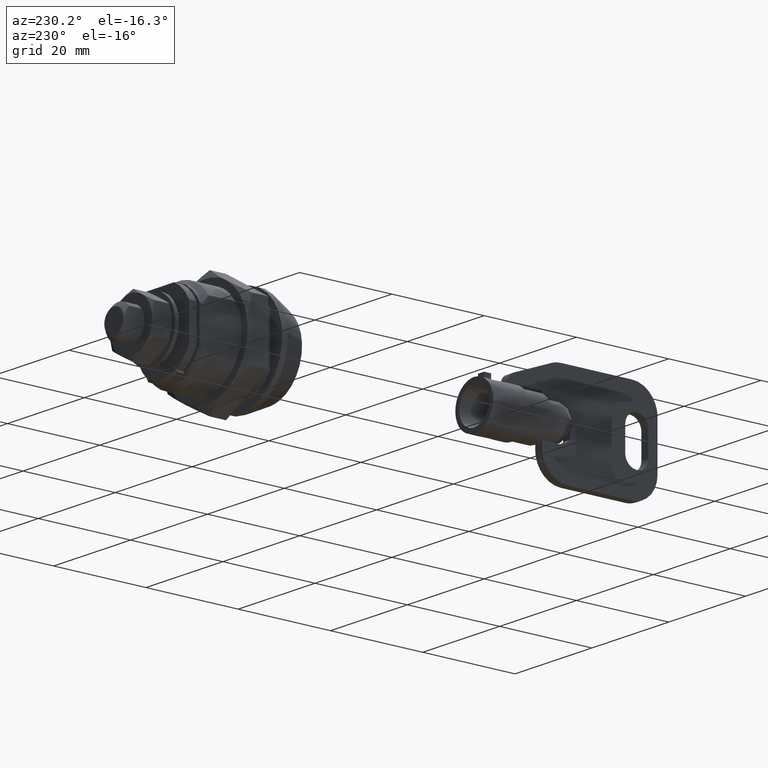
[diagram: clean part render]
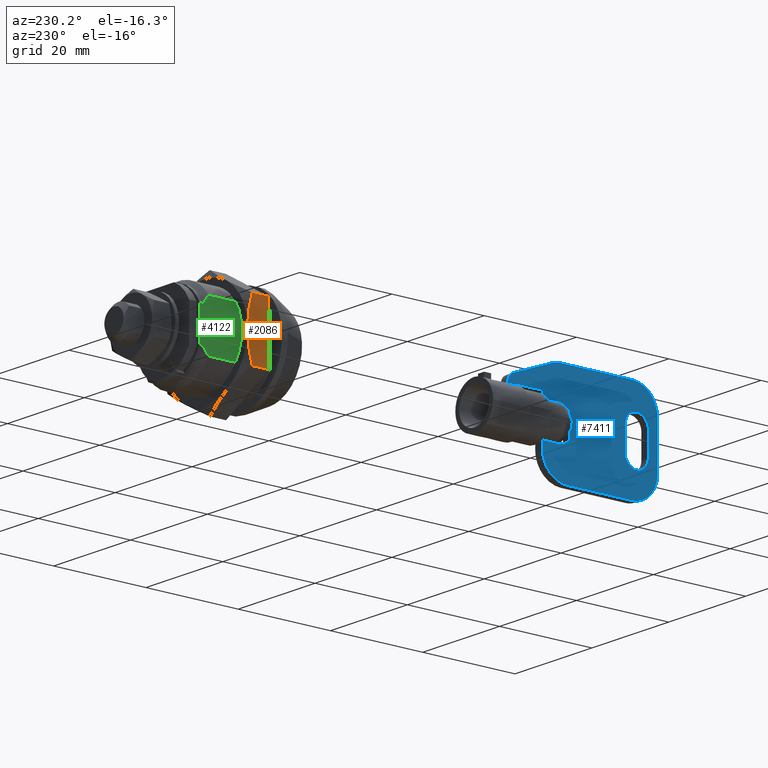
[diagram: same view with three faces highlighted in distinct colors, each labeled with its STEP entity id]
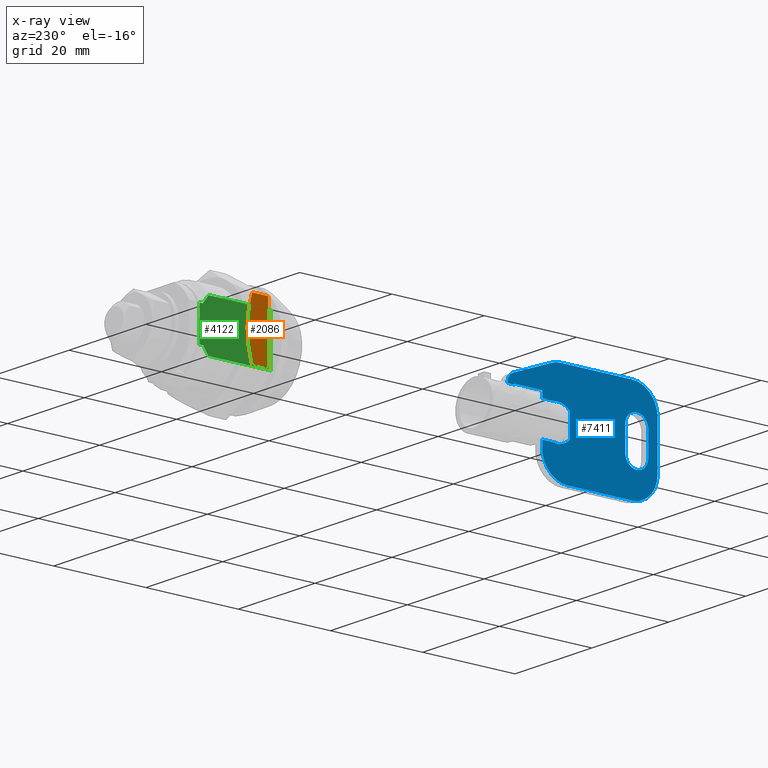
[diagram: x-ray of the same camera — body ghosted, the three highlighted faces saturated]
A machine part, auxiliary view with three faces highlighted in distinct colors.
The next image is the same camera in x-ray (body ghosted, the three faces saturated) — at least one of them is partly hidden behind the body in this view.
Their STEP definitions:

[orange] entity #2086 — the highlighted face is a freeform B-spline surface patch.
#1753=CARTESIAN_POINT('',(14.817523160168721,10.999996153432580,6.350857779185181));
#1754=VERTEX_POINT('',#1753);
#1768=CARTESIAN_POINT('',(15.800003000000100,11.0,0.0));
#1769=VERTEX_POINT('',#1768);
#1783=CARTESIAN_POINT('',(14.817523160168721,10.999996153432580,6.350857779185181));
#1784=CARTESIAN_POINT('',(15.113874832963189,10.999996787801960,5.324264894242234));
#1785=CARTESIAN_POINT('',(15.360691044646980,10.999997425601499,4.284209950723549));
#1786=CARTESIAN_POINT('',(15.575911920846711,10.999998229311601,2.958785661351487));
#1787=CARTESIAN_POINT('',(15.633452607148490,10.999998470911120,2.559249061069617));
#1788=CARTESIAN_POINT('',(15.679550248279041,10.999998713303039,2.156602629145398));
#1789=CARTESIAN_POINT('',(15.707643862317649,10.999998875080340,1.887454715712000));
#1790=CARTESIAN_POINT('',(15.720383532482369,10.999998956152121,1.752368935644440));
#1791=CARTESIAN_POINT('',(15.777091216504781,10.999999360746120,1.077151741925466));
#1792=CARTESIAN_POINT('',(15.799949071151140,10.999999681358100,0.538674497060350));
#1793=CARTESIAN_POINT('',(15.800002968709270,10.999999999244411,0.001277365672401));
#1794=CARTESIAN_POINT('',(15.800003000490999,10.999999999622210,0.000638681619963));
#1795=CARTESIAN_POINT('',(15.800003000000100,11.0,0.0));
#1796=B_SPLINE_CURVE_WITH_KNOTS('',3,(#1783,#1784,#1785,#1786,#1787,#1788,#1789,#1790,#1791,#1792,#1793,#1794,#1795),.UNSPECIFIED.,.F.,.U.,(4,2,1,2,2,2,4),(0.499851263056241,0.749851263056241,0.812351263056241,0.843601263056241,0.874851263056241,0.999851263056241,1.0),.UNSPECIFIED.);
#1797=EDGE_CURVE('',#1754,#1769,#1796,.T.);
#1816=CARTESIAN_POINT('',(14.817523160168721,11.000006684522100,-6.350839538793029));
#1817=VERTEX_POINT('',#1816);
#1818=CARTESIAN_POINT('',(15.800003000000100,11.0,0.0));
#1819=CARTESIAN_POINT('',(15.800002479859710,11.000000551095010,-0.536115558767677));
#1820=CARTESIAN_POINT('',(15.777262374012670,11.000001104044291,-1.070517174581867));
#1821=CARTESIAN_POINT('',(15.688480136834359,11.000002214130410,-2.136695299233254));
#1822=CARTESIAN_POINT('',(15.622418568846131,11.000002771268830,-2.668470343078009));
#1823=CARTESIAN_POINT('',(15.494177700114509,11.000003609353360,-3.463935907741798));
#1824=CARTESIAN_POINT('',(15.446586614998010,11.000003889109870,-3.728725981107665));
#1825=CARTESIAN_POINT('',(15.342388636294091,11.000004449358091,-4.257626582415925));
#1826=CARTESIAN_POINT('',(15.285757265390890,11.000004729967310,-4.521847641896962));
#1827=CARTESIAN_POINT('',(15.103564458138759,11.000005572072840,-5.312878537788781));
#1828=CARTESIAN_POINT('',(14.966654906536240,11.000006129765151,-5.834232214433349));
#1829=CARTESIAN_POINT('',(14.817523160168721,11.000006684522100,-6.350839538793029));
#1830=B_SPLINE_CURVE_WITH_KNOTS('',3,(#1818,#1819,#1820,#1821,#1822,#1823,#1824,#1825,#1826,#1827,#1828,#1829),.UNSPECIFIED.,.F.,.U.,(4,2,2,2,2,4),(0.000000861975267,0.124852125000845,0.249852125000845,0.312352125000845,0.374852125000845,0.499851263025578),.UNSPECIFIED.);
#1831=EDGE_CURVE('',#1769,#1817,#1830,.T.);
#2049=CARTESIAN_POINT('',(11.300003000000000,11.0,6.350860000000099));
#2050=VERTEX_POINT('',#2049);
#2051=CARTESIAN_POINT('',(14.817523160168721,10.999996153432580,6.350857779185181));
#2052=CARTESIAN_POINT('',(11.300003000000000,11.0,6.350860000000099));
#2053=QUASI_UNIFORM_CURVE('',1,(#2051,#2052),.UNSPECIFIED.,.F.,.U.);
#2054=EDGE_CURVE('',#1754,#2050,#2053,.T.);
#2064=CARTESIAN_POINT('',(11.075228050964650,11.0,6.985309986578926));
#2065=CARTESIAN_POINT('',(11.075228050964650,11.0,-6.985289752495943));
#2066=CARTESIAN_POINT('',(16.024778109967990,11.0,6.985309986578926));
#2067=CARTESIAN_POINT('',(16.024778109967990,11.0,-6.985289752495943));
#2068=B_SPLINE_SURFACE_WITH_KNOTS('',1,1,((#2064,#2066),(#2065,#2067)),.UNSPECIFIED.,.F.,.F.,.U.,(2,2),(2,2),(0.0,13.970599739074871),(0.0,4.949550059003343),.UNSPECIFIED.);
#2069=ORIENTED_EDGE('',*,*,#2054,.F.);
#2070=ORIENTED_EDGE('',*,*,#1797,.T.);
#2071=ORIENTED_EDGE('',*,*,#1831,.T.);
#2072=CARTESIAN_POINT('',(11.300003000000000,11.0,-6.350835679463490));
#2073=VERTEX_POINT('',#2072);
#2074=CARTESIAN_POINT('',(14.817523160168721,11.000006684522100,-6.350839538793029));
#2075=CARTESIAN_POINT('',(11.300003000000000,11.0,-6.350835679463490));
#2076=QUASI_UNIFORM_CURVE('',1,(#2074,#2075),.UNSPECIFIED.,.F.,.U.);
#2077=EDGE_CURVE('',#1817,#2073,#2076,.T.);
#2078=ORIENTED_EDGE('',*,*,#2077,.T.);
#2079=CARTESIAN_POINT('',(11.300003000000000,11.0,-6.350835679463490));
#2080=CARTESIAN_POINT('',(11.300003000000000,11.0,6.350860000000099));
#2081=QUASI_UNIFORM_CURVE('',1,(#2079,#2080),.UNSPECIFIED.,.F.,.U.);
#2082=EDGE_CURVE('',#2073,#2050,#2081,.T.);
#2083=ORIENTED_EDGE('',*,*,#2082,.T.);
#2084=EDGE_LOOP('',(#2069,#2070,#2071,#2078,#2083));
#2085=FACE_OUTER_BOUND('',#2084,.T.);
#2086=ADVANCED_FACE('',(#2085),#2068,.F.);

[blue] entity #7411 — the highlighted face is a freeform B-spline surface patch.
#5639=CARTESIAN_POINT('',(-58.490193000000012,0.900000000000000,-3.588871688985175));
#5640=VERTEX_POINT('',#5639);
#5654=CARTESIAN_POINT('',(-61.487812432673103,0.900000000000000,-3.588871688985175));
#5655=VERTEX_POINT('',#5654);
#5656=CARTESIAN_POINT('',(-61.487812432673103,0.900000000000000,-3.588871688985175));
#5657=CARTESIAN_POINT('',(-58.490193000000012,0.900000000000000,-3.588871688985175));
#5658=QUASI_UNIFORM_CURVE('',1,(#5656,#5657),.UNSPECIFIED.,.F.,.U.);
#5659=EDGE_CURVE('',#5655,#5640,#5658,.T.);
#5678=CARTESIAN_POINT('',(-61.487812432673103,0.900000000000000,3.588871688985175));
#5679=VERTEX_POINT('',#5678);
#5693=CARTESIAN_POINT('',(-58.490193000000012,0.900000000000000,3.588871688985175));
#5694=VERTEX_POINT('',#5693);
#5695=CARTESIAN_POINT('',(-58.490193000000012,0.900000000000000,3.588871688985175));
#5696=CARTESIAN_POINT('',(-61.487812432673103,0.900000000000000,3.588871688985175));
#5697=QUASI_UNIFORM_CURVE('',1,(#5695,#5696),.UNSPECIFIED.,.F.,.U.);
#5698=EDGE_CURVE('',#5694,#5679,#5697,.T.);
#5860=CARTESIAN_POINT('',(-52.490192999999998,0.900000000000000,4.816637831516920));
#5861=VERTEX_POINT('',#5860);
#5875=CARTESIAN_POINT('',(-50.990193000000012,0.900000000000000,4.816637831516920));
#5876=VERTEX_POINT('',#5875);
#5877=CARTESIAN_POINT('',(-50.990193000000012,0.900000000000000,4.816637831516920));
#5878=CARTESIAN_POINT('',(-52.490192999999998,0.900000000000000,4.816637831516920));
#5879=QUASI_UNIFORM_CURVE('',1,(#5877,#5878),.UNSPECIFIED.,.F.,.U.);
#5880=EDGE_CURVE('',#5876,#5861,#5879,.T.);
#6116=CARTESIAN_POINT('',(-61.490199608887401,0.900000000000000,-3.588702282998970));
#6117=VERTEX_POINT('',#6116);
#6118=CARTESIAN_POINT('',(-61.490199608887423,0.900000000000000,-3.588702282999030));
#6119=CARTESIAN_POINT('',(-61.489403980217247,0.900000000000000,-3.588759073560181));
#6120=CARTESIAN_POINT('',(-61.488608254140821,0.900000000000000,-3.588815540332797));
#6121=CARTESIAN_POINT('',(-61.487812432673103,0.900000000000000,-3.588871688985175));
#6122=B_SPLINE_CURVE_WITH_KNOTS('',3,(#6118,#6119,#6120,#6121),.UNSPECIFIED.,.F.,.U.,(4,4),(0.0,0.000217530826527),.UNSPECIFIED.);
#6123=EDGE_CURVE('',#6117,#5655,#6122,.T.);
#6264=CARTESIAN_POINT('',(-61.490192999999998,0.900000000000000,3.588702754722065));
#6265=VERTEX_POINT('',#6264);
#6279=CARTESIAN_POINT('',(-61.487812432673103,0.900000000000000,3.588871688985175));
#6280=CARTESIAN_POINT('',(-61.488605935360418,0.900000000000000,3.588815710378918));
#6281=CARTESIAN_POINT('',(-61.489399457491018,0.900000000000000,3.588759394561059));
#6282=CARTESIAN_POINT('',(-61.490192999999998,0.900000000000000,3.588702754722082));
#6283=B_SPLINE_CURVE_WITH_KNOTS('',3,(#6279,#6280,#6281,#6282),.UNSPECIFIED.,.F.,.U.,(4,4),(0.999783444907066,1.0),.UNSPECIFIED.);
#6284=EDGE_CURVE('',#5679,#6265,#6283,.T.);
#6428=CARTESIAN_POINT('',(-76.490193000000005,0.900000000000012,-2.500000000000000));
#6429=VERTEX_POINT('',#6428);
#6435=CARTESIAN_POINT('',(-81.490193000000005,0.900000000000012,-2.500000000000000));
#6436=VERTEX_POINT('',#6435);
#6437=CARTESIAN_POINT('',(-81.490193000000005,0.900000000000012,-2.500000000000000));
#6438=CARTESIAN_POINT('',(-81.490193000000005,0.900000000000012,-5.000000000000001));
#6439=CARTESIAN_POINT('',(-78.990193000000005,0.900000000000012,-5.0));
#6440=CARTESIAN_POINT('',(-76.490192999999991,0.900000000000012,-5.000000000000001));
#6441=CARTESIAN_POINT('',(-76.490193000000005,0.900000000000012,-2.500000000000000));
#6449=(BOUNDED_CURVE()B_SPLINE_CURVE(2,(#6437,#6438,#6439,#6440,#6441),.UNSPECIFIED.,.F.,.U.)B_SPLINE_CURVE_WITH_KNOTS((3,2,3),(0.0,0.500000000000000,1.0),.UNSPECIFIED.)CURVE()GEOMETRIC_REPRESENTATION_ITEM()RATIONAL_B_SPLINE_CURVE((1.0,0.707106781186548,1.0,0.707106781186548,1.0))REPRESENTATION_ITEM(''));
#6450=EDGE_CURVE('',#6436,#6429,#6449,.T.);
#6472=CARTESIAN_POINT('',(-76.490193000000005,0.900000000000012,2.500000000000000));
#6473=VERTEX_POINT('',#6472);
#6479=CARTESIAN_POINT('',(-76.490193000000005,0.900000000000012,2.500000000000000));
#6480=CARTESIAN_POINT('',(-76.490193000000005,0.900000000000012,-2.500000000000000));
#6481=QUASI_UNIFORM_CURVE('',1,(#6479,#6480),.UNSPECIFIED.,.F.,.U.);
#6482=EDGE_CURVE('',#6473,#6429,#6481,.T.);
#6523=CARTESIAN_POINT('',(-81.490193000000005,0.900000000000012,2.500000000000000));
#6524=VERTEX_POINT('',#6523);
#6530=CARTESIAN_POINT('',(-76.490193000000005,0.900000000000012,2.500000000000000));
#6531=CARTESIAN_POINT('',(-76.490192999999991,0.900000000000012,5.000000000000001));
#6532=CARTESIAN_POINT('',(-78.990193000000005,0.900000000000012,5.0));
#6533=CARTESIAN_POINT('',(-81.490193000000005,0.900000000000012,5.000000000000001));
#6534=CARTESIAN_POINT('',(-81.490193000000005,0.900000000000012,2.500000000000000));
#6542=(BOUNDED_CURVE()B_SPLINE_CURVE(2,(#6530,#6531,#6532,#6533,#6534),.UNSPECIFIED.,.F.,.U.)B_SPLINE_CURVE_WITH_KNOTS((3,2,3),(0.0,0.500000000000000,1.0),.UNSPECIFIED.)CURVE()GEOMETRIC_REPRESENTATION_ITEM()RATIONAL_B_SPLINE_CURVE((1.0,0.707106781186548,1.0,0.707106781186548,1.0))REPRESENTATION_ITEM(''));
#6543=EDGE_CURVE('',#6473,#6524,#6542,.T.);
#6560=CARTESIAN_POINT('',(-81.490193000000005,0.900000000000012,-2.500000000000000));
#6561=CARTESIAN_POINT('',(-81.490193000000005,0.900000000000012,2.500000000000000));
#6562=QUASI_UNIFORM_CURVE('',1,(#6560,#6561),.UNSPECIFIED.,.F.,.U.);
#6563=EDGE_CURVE('',#6436,#6524,#6562,.T.);
#6583=CARTESIAN_POINT('',(-62.526610622687897,0.900000000000000,10.500000000000000));
#6584=VERTEX_POINT('',#6583);
#6585=CARTESIAN_POINT('',(-60.526312026143103,0.900000000000000,10.123358812796660));
#6586=VERTEX_POINT('',#6585);
#6587=CARTESIAN_POINT('',(-62.526610622687897,0.900000000000012,10.500000000000000));
#6588=CARTESIAN_POINT('',(-61.491001972461007,0.900000000000012,10.500000000000000));
#6589=CARTESIAN_POINT('',(-60.526312026143117,0.900000000000012,10.123358812796640));
#6597=(BOUNDED_CURVE()B_SPLINE_CURVE(2,(#6587,#6588,#6589),.UNSPECIFIED.,.F.,.U.)CURVE()GEOMETRIC_REPRESENTATION_ITEM()QUASI_UNIFORM_CURVE()RATIONAL_B_SPLINE_CURVE((1.0,0.982730833988851,1.0))REPRESENTATION_ITEM(''));
#6598=EDGE_CURVE('',#6584,#6586,#6597,.T.);
#6644=CARTESIAN_POINT('',(-52.262811692165499,0.900000000000000,6.897063578639590));
#6645=VERTEX_POINT('',#6644);
#6646=CARTESIAN_POINT('',(-50.990193000000012,0.900000000000000,5.034024010349899));
#6647=VERTEX_POINT('',#6646);
#6648=CARTESIAN_POINT('',(-52.262811692165513,0.900000000000012,6.897063578639575));
#6649=CARTESIAN_POINT('',(-50.990192999999998,0.900000000000012,6.400198635759286));
#6650=CARTESIAN_POINT('',(-50.990192999999998,0.900000000000012,5.034024010349899));
#6658=(BOUNDED_CURVE()B_SPLINE_CURVE(2,(#6648,#6649,#6650),.UNSPECIFIED.,.F.,.U.)CURVE()GEOMETRIC_REPRESENTATION_ITEM()QUASI_UNIFORM_CURVE()RATIONAL_B_SPLINE_CURVE((1.0,0.825739260879985,1.0))REPRESENTATION_ITEM(''));
#6659=EDGE_CURVE('',#6645,#6647,#6658,.T.);
#6705=CARTESIAN_POINT('',(-58.490193000000012,0.900000000000012,5.0));
#6706=VERTEX_POINT('',#6705);
#6712=CARTESIAN_POINT('',(-52.490192999999998,0.900000000000012,5.0));
#6713=VERTEX_POINT('',#6712);
#6714=CARTESIAN_POINT('',(-58.490193000000012,0.900000000000012,5.0));
#6715=CARTESIAN_POINT('',(-52.490192999999998,0.900000000000012,5.0));
#6716=QUASI_UNIFORM_CURVE('',1,(#6714,#6715),.UNSPECIFIED.,.F.,.U.);
#6717=EDGE_CURVE('',#6706,#6713,#6716,.T.);
#6741=CARTESIAN_POINT('',(-64.490193000000005,0.900000000000012,-2.500520151848770));
#6742=VERTEX_POINT('',#6741);
#6748=CARTESIAN_POINT('',(-64.490193000000005,0.900000000000012,2.499520151848455));
#6749=VERTEX_POINT('',#6748);
#6750=CARTESIAN_POINT('',(-64.490193000000005,0.900000000000012,-2.500520151848770));
#6751=CARTESIAN_POINT('',(-64.490193000000005,0.900000000000012,2.499520151848455));
#6752=QUASI_UNIFORM_CURVE('',1,(#6750,#6751),.UNSPECIFIED.,.F.,.U.);
#6753=EDGE_CURVE('',#6742,#6749,#6752,.T.);
#6792=CARTESIAN_POINT('',(-61.490199608887401,0.900000000000012,-3.700514335641915));
#6793=VERTEX_POINT('',#6792);
#6799=CARTESIAN_POINT('',(-64.490193000000005,0.900000000000012,-2.500520151848772));
#6800=CARTESIAN_POINT('',(-63.255093754734816,0.900000000000012,-3.762762620372036));
#6801=CARTESIAN_POINT('',(-61.490199608887401,0.900000000000012,-3.700514335641909));
#6809=(BOUNDED_CURVE()B_SPLINE_CURVE(2,(#6799,#6800,#6801),.UNSPECIFIED.,.F.,.U.)CURVE()GEOMETRIC_REPRESENTATION_ITEM()QUASI_UNIFORM_CURVE()RATIONAL_B_SPLINE_CURVE((1.0,0.914809181026153,1.0))REPRESENTATION_ITEM(''));
#6810=EDGE_CURVE('',#6742,#6793,#6809,.T.);
#6847=CARTESIAN_POINT('',(-63.990192999999998,0.900000000000012,-10.500000000000201));
#6848=VERTEX_POINT('',#6847);
#6854=CARTESIAN_POINT('',(-58.490193000000012,0.900000000000012,-5.0));
#6855=VERTEX_POINT('',#6854);
#6856=CARTESIAN_POINT('',(-63.990192999999998,0.900000000000012,-10.500000000000000));
#6857=CARTESIAN_POINT('',(-58.490193000000005,0.900000000000012,-10.499999999999998));
#6858=CARTESIAN_POINT('',(-58.490193000000012,0.900000000000012,-5.0));
#6866=(BOUNDED_CURVE()B_SPLINE_CURVE(2,(#6856,#6857,#6858),.UNSPECIFIED.,.F.,.U.)CURVE()GEOMETRIC_REPRESENTATION_ITEM()QUASI_UNIFORM_CURVE()RATIONAL_B_SPLINE_CURVE((1.0,0.707106781186548,1.0))REPRESENTATION_ITEM(''));
#6867=EDGE_CURVE('',#6848,#6855,#6866,.T.);
#6889=CARTESIAN_POINT('',(-77.990193000000005,0.900000000000012,-10.500000000000000));
#6890=VERTEX_POINT('',#6889);
#6896=CARTESIAN_POINT('',(-77.990193000000005,0.900000000000012,-10.500000000000000));
#6897=CARTESIAN_POINT('',(-63.990192999999998,0.900000000000012,-10.500000000000201));
#6898=QUASI_UNIFORM_CURVE('',1,(#6896,#6897),.UNSPECIFIED.,.F.,.U.);
#6899=EDGE_CURVE('',#6890,#6848,#6898,.T.);
#6934=CARTESIAN_POINT('',(-83.490193000000005,0.900000000000012,-5.0));
#6935=VERTEX_POINT('',#6934);
#6941=CARTESIAN_POINT('',(-83.490193000000005,0.900000000000012,-5.0));
#6942=CARTESIAN_POINT('',(-83.490193000000005,0.900000000000012,-10.499999999999998));
#6943=CARTESIAN_POINT('',(-77.990193000000005,0.900000000000012,-10.500000000000000));
#6951=(BOUNDED_CURVE()B_SPLINE_CURVE(2,(#6941,#6942,#6943),.UNSPECIFIED.,.F.,.U.)CURVE()GEOMETRIC_REPRESENTATION_ITEM()QUASI_UNIFORM_CURVE()RATIONAL_B_SPLINE_CURVE((1.0,0.707106781186548,1.0))REPRESENTATION_ITEM(''));
#6952=EDGE_CURVE('',#6935,#6890,#6951,.T.);
#6970=CARTESIAN_POINT('',(-83.490193000000005,0.900000000000012,5.0));
#6971=VERTEX_POINT('',#6970);
#6977=CARTESIAN_POINT('',(-83.490193000000005,0.900000000000012,5.0));
#6978=CARTESIAN_POINT('',(-83.490193000000005,0.900000000000012,-5.0));
#6979=QUASI_UNIFORM_CURVE('',1,(#6977,#6978),.UNSPECIFIED.,.F.,.U.);
#6980=EDGE_CURVE('',#6971,#6935,#6979,.T.);
#7015=CARTESIAN_POINT('',(-77.990193000000005,0.900000000000012,10.500000000000000));
#7016=VERTEX_POINT('',#7015);
#7022=CARTESIAN_POINT('',(-77.990193000000005,0.900000000000012,10.500000000000000));
#7023=CARTESIAN_POINT('',(-83.490193000000005,0.900000000000012,10.499999999999998));
#7024=CARTESIAN_POINT('',(-83.490193000000005,0.900000000000012,5.0));
#7032=(BOUNDED_CURVE()B_SPLINE_CURVE(2,(#7022,#7023,#7024),.UNSPECIFIED.,.F.,.U.)CURVE()GEOMETRIC_REPRESENTATION_ITEM()QUASI_UNIFORM_CURVE()RATIONAL_B_SPLINE_CURVE((1.0,0.707106781186548,1.0))REPRESENTATION_ITEM(''));
#7033=EDGE_CURVE('',#7016,#6971,#7032,.T.);
#7050=CARTESIAN_POINT('',(-62.526610622687897,0.900000000000000,10.500000000000000));
#7051=CARTESIAN_POINT('',(-77.990193000000005,0.900000000000012,10.500000000000000));
#7052=QUASI_UNIFORM_CURVE('',1,(#7050,#7051),.UNSPECIFIED.,.F.,.U.);
#7053=EDGE_CURVE('',#6584,#7016,#7052,.T.);
#7064=CARTESIAN_POINT('',(-52.262811692165499,0.900000000000000,6.897063578639590));
#7065=CARTESIAN_POINT('',(-60.526312026143103,0.900000000000000,10.123358812796660));
#7066=QUASI_UNIFORM_CURVE('',1,(#7064,#7065),.UNSPECIFIED.,.F.,.U.);
#7067=EDGE_CURVE('',#6645,#6586,#7066,.T.);
#7106=CARTESIAN_POINT('',(-61.490192999999998,0.900000000000012,3.699514102538915));
#7107=VERTEX_POINT('',#7106);
#7113=CARTESIAN_POINT('',(-61.490192999999998,0.900000000000012,3.699514102538915));
#7114=CARTESIAN_POINT('',(-61.490192999999998,0.900000000000000,3.588702754722065));
#7115=QUASI_UNIFORM_CURVE('',1,(#7113,#7114),.UNSPECIFIED.,.F.,.U.);
#7116=EDGE_CURVE('',#7107,#6265,#7115,.T.);
#7153=CARTESIAN_POINT('',(-61.490192999999998,0.900000000000012,3.699514102538912));
#7154=CARTESIAN_POINT('',(-63.255090991481552,0.900000000000012,3.761765444351775));
#7155=CARTESIAN_POINT('',(-64.490193000000005,0.900000000000012,2.499520151848459));
#7163=(BOUNDED_CURVE()B_SPLINE_CURVE(2,(#7153,#7154,#7155),.UNSPECIFIED.,.F.,.U.)CURVE()GEOMETRIC_REPRESENTATION_ITEM()QUASI_UNIFORM_CURVE()RATIONAL_B_SPLINE_CURVE((1.0,0.914808847163458,1.0))REPRESENTATION_ITEM(''));
#7164=EDGE_CURVE('',#7107,#6749,#7163,.T.);
#7175=CARTESIAN_POINT('',(-61.490199608887401,0.900000000000000,-3.588702282998970));
#7176=CARTESIAN_POINT('',(-61.490199608887401,0.900000000000012,-3.700514335641915));
#7177=QUASI_UNIFORM_CURVE('',1,(#7175,#7176),.UNSPECIFIED.,.F.,.U.);
#7178=EDGE_CURVE('',#6117,#6793,#7177,.T.);
#7195=CARTESIAN_POINT('',(-58.490193000000012,0.900000000000000,3.588871688985175));
#7196=CARTESIAN_POINT('',(-58.490193000000012,0.900000000000012,5.0));
#7197=QUASI_UNIFORM_CURVE('',1,(#7195,#7196),.UNSPECIFIED.,.F.,.U.);
#7198=EDGE_CURVE('',#5694,#6706,#7197,.T.);
#7221=CARTESIAN_POINT('',(-58.490193000000012,0.900000000000012,-5.0));
#7222=CARTESIAN_POINT('',(-58.490193000000012,0.900000000000000,-3.588871688985175));
#7223=QUASI_UNIFORM_CURVE('',1,(#7221,#7222),.UNSPECIFIED.,.F.,.U.);
#7224=EDGE_CURVE('',#6855,#5640,#7223,.T.);
#7234=CARTESIAN_POINT('',(-50.990193000000012,0.900000000000000,4.816637831516920));
#7235=CARTESIAN_POINT('',(-50.990193000000012,0.900000000000000,5.034024010349899));
#7236=QUASI_UNIFORM_CURVE('',1,(#7234,#7235),.UNSPECIFIED.,.F.,.U.);
#7237=EDGE_CURVE('',#5876,#6647,#7236,.T.);
#7304=CARTESIAN_POINT('',(-52.490192999999998,0.900000000000012,5.0));
#7305=CARTESIAN_POINT('',(-52.490192999999998,0.900000000000000,4.816637831516920));
#7306=QUASI_UNIFORM_CURVE('',1,(#7304,#7305),.UNSPECIFIED.,.F.,.U.);
#7307=EDGE_CURVE('',#6713,#5861,#7306,.T.);
#7374=CARTESIAN_POINT('',(-85.113571292962916,0.900000000000000,-11.548949959298140));
#7375=CARTESIAN_POINT('',(-49.366817031618240,0.900000000000000,-11.548949959298140));
#7376=CARTESIAN_POINT('',(-85.113571292962916,0.900000000000000,11.548950522561830));
#7377=CARTESIAN_POINT('',(-49.366817031618240,0.900000000000000,11.548950522561830));
#7378=B_SPLINE_SURFACE_WITH_KNOTS('',1,1,((#7374,#7376),(#7375,#7377)),.UNSPECIFIED.,.F.,.F.,.U.,(2,2),(2,2),(0.0,35.746754261344677),(0.0,23.097900481859970),.UNSPECIFIED.);
#7379=ORIENTED_EDGE('',*,*,#7053,.F.);
#7380=ORIENTED_EDGE('',*,*,#6598,.T.);
#7381=ORIENTED_EDGE('',*,*,#7067,.F.);
#7382=ORIENTED_EDGE('',*,*,#6659,.T.);
#7383=ORIENTED_EDGE('',*,*,#7237,.F.);
#7384=ORIENTED_EDGE('',*,*,#5880,.T.);
#7385=ORIENTED_EDGE('',*,*,#7307,.F.);
#7386=ORIENTED_EDGE('',*,*,#6717,.F.);
#7387=ORIENTED_EDGE('',*,*,#7198,.F.);
#7388=ORIENTED_EDGE('',*,*,#5698,.T.);
#7389=ORIENTED_EDGE('',*,*,#6284,.T.);
#7390=ORIENTED_EDGE('',*,*,#7116,.F.);
#7391=ORIENTED_EDGE('',*,*,#7164,.T.);
#7392=ORIENTED_EDGE('',*,*,#6753,.F.);
#7393=ORIENTED_EDGE('',*,*,#6810,.T.);
#7394=ORIENTED_EDGE('',*,*,#7178,.F.);
#7395=ORIENTED_EDGE('',*,*,#6123,.T.);
#7396=ORIENTED_EDGE('',*,*,#5659,.T.);
#7397=ORIENTED_EDGE('',*,*,#7224,.F.);
#7398=ORIENTED_EDGE('',*,*,#6867,.F.);
#7399=ORIENTED_EDGE('',*,*,#6899,.F.);
#7400=ORIENTED_EDGE('',*,*,#6952,.F.);
#7401=ORIENTED_EDGE('',*,*,#6980,.F.);
#7402=ORIENTED_EDGE('',*,*,#7033,.F.);
#7403=EDGE_LOOP('',(#7379,#7380,#7381,#7382,#7383,#7384,#7385,#7386,#7387,#7388,#7389,#7390,#7391,#7392,#7393,#7394,#7395,#7396,#7397,#7398,#7399,#7400,#7401,#7402));
#7404=FACE_OUTER_BOUND('',#7403,.T.);
#7405=ORIENTED_EDGE('',*,*,#6563,.F.);
#7406=ORIENTED_EDGE('',*,*,#6450,.T.);
#7407=ORIENTED_EDGE('',*,*,#6482,.F.);
#7408=ORIENTED_EDGE('',*,*,#6543,.T.);
#7409=EDGE_LOOP('',(#7405,#7406,#7407,#7408));
#7410=FACE_BOUND('',#7409,.T.);
#7411=ADVANCED_FACE('',(#7404,#7410),#7378,.F.);

[green] entity #4122 — the highlighted face is a freeform B-spline surface patch.
#4047=CARTESIAN_POINT('',(5.535768284116709,7.899993999999879,-5.803480519907581));
#4048=CARTESIAN_POINT('',(5.535768284116709,7.899993999999879,5.803480708605281));
#4049=CARTESIAN_POINT('',(22.364233031919881,7.899993999999879,-5.803480519907581));
#4050=CARTESIAN_POINT('',(22.364233031919881,7.899993999999879,5.803480708605280));
#4051=B_SPLINE_SURFACE_WITH_KNOTS('',1,1,((#4047,#4049),(#4048,#4050)),.UNSPECIFIED.,.F.,.F.,.U.,(2,2),(2,2),(0.0,11.606961228512860),(0.0,16.828464747803171),.UNSPECIFIED.);
#4052=CARTESIAN_POINT('',(19.680003525005851,7.899994258074021,-5.276370980361171));
#4053=VERTEX_POINT('',#4052);
#4054=CARTESIAN_POINT('',(6.300003000000000,7.899994258074021,-5.276370980361171));
#4055=VERTEX_POINT('',#4054);
#4056=CARTESIAN_POINT('',(19.680003525005851,7.899994258074021,-5.276370980361171));
#4057=CARTESIAN_POINT('',(6.300003000000000,7.899994258074021,-5.276370980361171));
#4058=QUASI_UNIFORM_CURVE('',1,(#4056,#4057),.UNSPECIFIED.,.F.,.U.);
#4059=EDGE_CURVE('',#4053,#4055,#4058,.T.);
#4060=ORIENTED_EDGE('',*,*,#4059,.T.);
#4061=CARTESIAN_POINT('',(6.300003000000000,7.899994258074040,5.276370980361140));
#4062=VERTEX_POINT('',#4061);
#4063=CARTESIAN_POINT('',(6.300003000000000,7.899994258074040,5.276370980361140));
#4064=CARTESIAN_POINT('',(6.300003000000000,7.899994258074021,-5.276370980361171));
#4065=QUASI_UNIFORM_CURVE('',1,(#4063,#4064),.UNSPECIFIED.,.F.,.U.);
#4066=EDGE_CURVE('',#4062,#4055,#4065,.T.);
#4067=ORIENTED_EDGE('',*,*,#4066,.F.);
#4068=CARTESIAN_POINT('',(19.680003525005851,7.899994258074040,5.276370980361140));
#4069=VERTEX_POINT('',#4068);
#4070=CARTESIAN_POINT('',(19.680003525005851,7.899994258074040,5.276370980361140));
#4071=CARTESIAN_POINT('',(6.300003000000000,7.899994258074040,5.276370980361140));
#4072=QUASI_UNIFORM_CURVE('',1,(#4070,#4071),.UNSPECIFIED.,.F.,.U.);
#4073=EDGE_CURVE('',#4069,#4062,#4072,.T.);
#4074=ORIENTED_EDGE('',*,*,#4073,.F.);
#4075=CARTESIAN_POINT('',(20.900014200045749,7.899993999999879,3.644176889227785));
#4076=VERTEX_POINT('',#4075);
#4077=CARTESIAN_POINT('',(20.900014200045749,7.899993999999879,3.644176889227785));
#4078=CARTESIAN_POINT('',(20.799649997955839,7.899994023548693,3.801303722672036));
#4079=CARTESIAN_POINT('',(20.695275998244568,7.899994047187941,3.956324844482000));
#4080=CARTESIAN_POINT('',(20.444631416655142,7.899994102319825,4.312470011213392));
#4081=CARTESIAN_POINT('',(20.296824985267062,7.899994133636780,4.510714134882905));
#4082=CARTESIAN_POINT('',(19.993775383376320,7.899994196010517,4.899078882760168));
#4083=CARTESIAN_POINT('',(19.838434653111570,7.899994227086984,5.089320626206289));
#4084=CARTESIAN_POINT('',(19.680003525005851,7.899994258074040,5.276370980361140));
#4085=B_SPLINE_CURVE_WITH_KNOTS('',3,(#4077,#4078,#4079,#4080,#4081,#4082,#4083,#4084),.UNSPECIFIED.,.F.,.U.,(4,2,2,4),(0.827814758254024,0.875000000000000,0.937500000000000,1.0),.UNSPECIFIED.);
#4086=EDGE_CURVE('',#4076,#4069,#4085,.T.);
#4087=ORIENTED_EDGE('',*,*,#4086,.F.);
#4088=CARTESIAN_POINT('',(21.599998999999698,7.899993999999879,3.644176889227785));
#4089=VERTEX_POINT('',#4088);
#4090=CARTESIAN_POINT('',(21.599998999999698,7.899993999999879,3.644176889227785));
#4091=CARTESIAN_POINT('',(20.900014200045749,7.899993999999879,3.644176889227785));
#4092=QUASI_UNIFORM_CURVE('',1,(#4090,#4091),.UNSPECIFIED.,.F.,.U.);
#4093=EDGE_CURVE('',#4089,#4076,#4092,.T.);
#4094=ORIENTED_EDGE('',*,*,#4093,.F.);
#4095=CARTESIAN_POINT('',(21.599998999999698,7.899993999999879,-3.644176889227785));
#4096=VERTEX_POINT('',#4095);
#4097=CARTESIAN_POINT('',(21.599998999999698,7.899993999999879,3.644176889227785));
#4098=CARTESIAN_POINT('',(21.599998999999698,7.899993999999879,-3.644176889227785));
#4099=QUASI_UNIFORM_CURVE('',1,(#4097,#4098),.UNSPECIFIED.,.F.,.U.);
#4100=EDGE_CURVE('',#4089,#4096,#4099,.T.);
#4101=ORIENTED_EDGE('',*,*,#4100,.T.);
#4102=CARTESIAN_POINT('',(20.900014200045749,7.899993999999879,-3.644176889227785));
#4103=VERTEX_POINT('',#4102);
#4104=CARTESIAN_POINT('',(20.900014200045749,7.899993999999879,-3.644176889227785));
#4105=CARTESIAN_POINT('',(21.599998999999698,7.899993999999879,-3.644176889227785));
#4106=QUASI_UNIFORM_CURVE('',1,(#4104,#4105),.UNSPECIFIED.,.F.,.U.);
#4107=EDGE_CURVE('',#4103,#4096,#4106,.T.);
#4108=ORIENTED_EDGE('',*,*,#4107,.F.);
#4109=CARTESIAN_POINT('',(19.680003525005851,7.899994258074021,-5.276370980361171));
#4110=CARTESIAN_POINT('',(19.999078783637461,7.899993999999881,-4.899658962704488));
#4111=CARTESIAN_POINT('',(20.305081806246431,7.899993999999879,-4.511150513121983));
#4112=CARTESIAN_POINT('',(20.662466959401531,7.899993999999881,-4.002847815190896));
#4113=CARTESIAN_POINT('',(20.732590923232848,7.899993999999881,-3.900134495627256));
#4114=CARTESIAN_POINT('',(20.834395777356370,7.899993999999879,-3.746017622984977));
#4115=CARTESIAN_POINT('',(20.867414819419590,7.899993999999879,-3.695211354159715));
#4116=CARTESIAN_POINT('',(20.900014200045749,7.899993999999879,-3.644176889227785));
#4117=B_SPLINE_CURVE_WITH_KNOTS('',3,(#4109,#4110,#4111,#4112,#4113,#4114,#4115,#4116),.UNSPECIFIED.,.F.,.U.,(4,2,2,4),(0.0,0.124999999999999,0.156249999999999,0.171520547363039),.UNSPECIFIED.);
#4118=EDGE_CURVE('',#4053,#4103,#4117,.T.);
#4119=ORIENTED_EDGE('',*,*,#4118,.F.);
#4120=EDGE_LOOP('',(#4060,#4067,#4074,#4087,#4094,#4101,#4108,#4119));
#4121=FACE_OUTER_BOUND('',#4120,.T.);
#4122=ADVANCED_FACE('',(#4121),#4051,.T.);